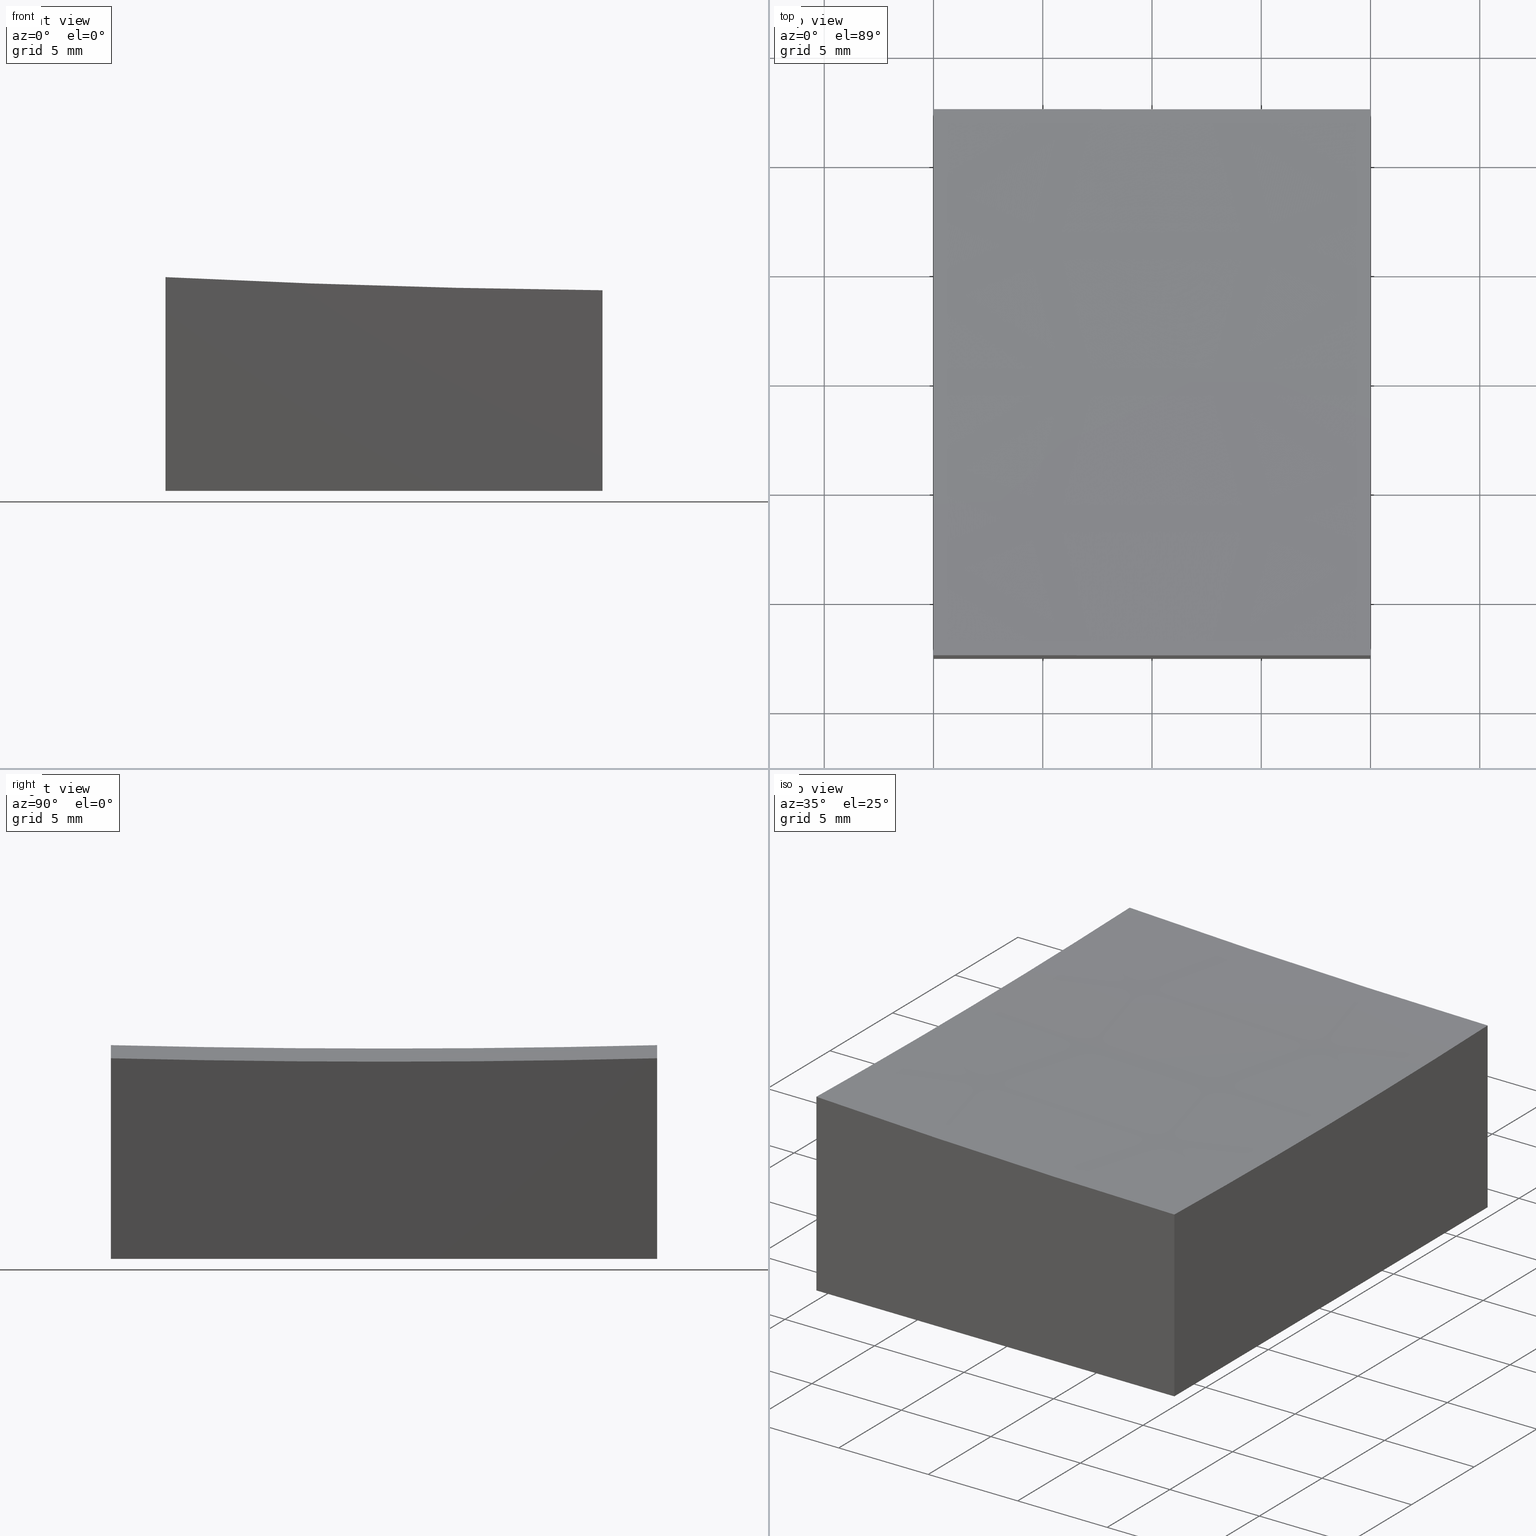
[diagram: canonical four-view strip — front | top / right | iso, engineering-drawing reading convention]
A machine part, canonical four-view strip (front | top / right | iso — engineering-drawing reading convention). The complete STEP part file that produces these views, byte-faithful:
ISO-10303-21;
HEADER;
FILE_DESCRIPTION (( 'STEP AP203' ),
    '1' );
FILE_NAME ('270640.step',
    '2024-12-24T02:21:42',
    ( '' ),
    ( '' ),
    'SwSTEP 2.0',
    'SolidWorks 2020',
    '' );
FILE_SCHEMA (( 'CONFIG_CONTROL_DESIGN' ));
ENDSEC;

DATA;
#1 = ORIENTED_EDGE ( 'NONE', *, *, #111, .F. ) ;
#2 = EDGE_CURVE ( 'NONE', #226, #220, #53, .T. ) ;
#3 = CIRCLE ( 'NONE', #265, 499.3746088859544443 ) ;
#4 = DIRECTION ( 'NONE',  ( 1.000000000000000000, 0.000000000000000000, 0.000000000000000000 ) ) ;
#5 = ORIENTED_EDGE ( 'NONE', *, *, #132, .T. ) ;
#6 = CC_DESIGN_SECURITY_CLASSIFICATION ( #135, ( #69 ) ) ;
#7 = COORDINATED_UNIVERSAL_TIME_OFFSET ( 8, 0, .AHEAD. ) ;
#8 = CARTESIAN_POINT ( 'NONE',  ( -9.999999999999998224, 12.49999999999999645, -10.00000000000000000 ) ) ;
#9 = CARTESIAN_POINT ( 'NONE',  ( 10.00000000000000178, 0.000000000000000000, 499.0000000000000000 ) ) ;
#10 = CARTESIAN_POINT ( 'NONE',  ( 10.00000000000000178, 12.50000000000000000, 10.00000000000000000 ) ) ;
#11 = FACE_OUTER_BOUND ( 'NONE', #260, .T. ) ;
#12 = DIRECTION ( 'NONE',  ( -0.000000000000000000, -0.000000000000000000, -1.000000000000000000 ) ) ;
#13 = APPROVAL ( #273, 'δָ��' ) ;
#14 = EDGE_CURVE ( 'NONE', #19, #218, #181, .T. ) ;
#15 = CALENDAR_DATE ( 2024, 24, 12 ) ;
#16 = DIRECTION ( 'NONE',  ( -1.000000000000000000, 0.000000000000000000, 1.110223024625156787E-16 ) ) ;
#17 = ORIENTED_EDGE ( 'NONE', *, *, #263, .T. ) ;
#18 = FACE_OUTER_BOUND ( 'NONE', #89, .T. ) ;
#19 = VERTEX_POINT ( 'NONE', #25 ) ;
#20 = ORIENTED_EDGE ( 'NONE', *, *, #72, .T. ) ;
#21 = CIRCLE ( 'NONE', #60, 499.3746088859544443 ) ;
#22 = EDGE_CURVE ( 'NONE', #79, #133, #47, .T. ) ;
#23 = APPROVAL_PERSON_ORGANIZATION ( #85, #136, #216 ) ;
#24 = DIRECTION ( 'NONE',  ( 0.000000000000000000, 1.000000000000000000, -0.000000000000000000 ) ) ;
#25 = CARTESIAN_POINT ( 'NONE',  ( -9.999999999999998224, -12.50000000000000355, -10.00000000000000000 ) ) ;
#26 = COORDINATED_UNIVERSAL_TIME_OFFSET ( 8, 0, .AHEAD. ) ;
#27 = DIRECTION ( 'NONE',  ( 1.734723475976807094E-16, -1.000000000000000000, 0.000000000000000000 ) ) ;
#28 = LINE ( 'NONE', #184, #107 ) ;
#29 = DIRECTION ( 'NONE',  ( -1.000000000000000000, -1.734723475976807094E-16, 0.000000000000000000 ) ) ;
#30 = DIRECTION ( 'NONE',  ( -1.000000000000000000, -1.735265831305355409E-16, 0.000000000000000000 ) ) ;
#31 = ADVANCED_FACE ( 'NONE', ( #224 ), #113, .F. ) ;
#32 = DATE_AND_TIME ( #94, #277 ) ;
#33 = CARTESIAN_POINT ( 'NONE',  ( 10.00000000000000178, -12.50000000000000000, 10.00000000000000000 ) ) ;
#34 = CARTESIAN_POINT ( 'NONE',  ( -10.00000000000000000, 0.000000000000000000, 499.0000000000000000 ) ) ;
#35 = ORIENTED_EDGE ( 'NONE', *, *, #185, .F. ) ;
#36 =( NAMED_UNIT ( * ) PLANE_ANGLE_UNIT ( ) SI_UNIT ( $, .RADIAN. ) );
#37 = FACE_OUTER_BOUND ( 'NONE', #121, .T. ) ;
#38 = APPLICATION_CONTEXT ( 'configuration controlled 3d designs of mechanical parts and assemblies' ) ;
#39 = ORIENTED_EDGE ( 'NONE', *, *, #197, .T. ) ;
#40 = APPROVAL_PERSON_ORGANIZATION ( #201, #131, #122 ) ;
#41 = PERSON_AND_ORGANIZATION ( #157, #244 ) ;
#42 = VECTOR ( 'NONE', #12, 1000.000000000000000 ) ;
#43 = ADVANCED_BREP_SHAPE_REPRESENTATION ( '270640', ( #93, #91 ), #88 ) ;
#44 = ORIENTED_EDGE ( 'NONE', *, *, #185, .T. ) ;
#45 = VECTOR ( 'NONE', #102, 1000.000000000000000 ) ;
#46 = CC_DESIGN_PERSON_AND_ORGANIZATION_ASSIGNMENT ( #51, #204, ( #69 ) ) ;
#47 = CIRCLE ( 'NONE', #209, 499.9999999999999432 ) ;
#48 = AXIS2_PLACEMENT_3D ( 'NONE', #74, #246, #142 ) ;
#49 = AXIS2_PLACEMENT_3D ( 'NONE', #268, #147, #30 ) ;
#50 = PRODUCT_DEFINITION ( 'δ֪', '', #69, #92 ) ;
#51 = PERSON_AND_ORGANIZATION ( #157, #244 ) ;
#52 = CARTESIAN_POINT ( 'NONE',  ( -9.999999999999998224, -12.50000000000000355, -0.2181386928964412775 ) ) ;
#53 = LINE ( 'NONE', #141, #42 ) ;
#54 = DIRECTION ( 'NONE',  ( -1.000000000000000000, -1.734723475976807094E-16, 0.000000000000000000 ) ) ;
#55 = ORIENTED_EDGE ( 'NONE', *, *, #263, .F. ) ;
#56 = CC_DESIGN_DATE_AND_TIME_ASSIGNMENT ( #126, #104, ( #50 ) ) ;
#57 = EDGE_CURVE ( 'NONE', #239, #133, #175, .T. ) ;
#58 = DIRECTION ( 'NONE',  ( 1.000000000000000000, 0.000000000000000000, 0.000000000000000000 ) ) ;
#59 = CARTESIAN_POINT ( 'NONE',  ( 10.00000000000000178, -12.50000000000000000, -10.00000000000000000 ) ) ;
#60 = AXIS2_PLACEMENT_3D ( 'NONE', #34, #4, #252 ) ;
#61 = PERSON_AND_ORGANIZATION ( #157, #244 ) ;
#62 = CARTESIAN_POINT ( 'NONE',  ( 10.00000000000000178, -12.50000000000000000, 10.00000000000000000 ) ) ;
#63 = ORIENTED_EDGE ( 'NONE', *, *, #132, .F. ) ;
#64 = PERSON_AND_ORGANIZATION ( #157, #244 ) ;
#65 = CARTESIAN_POINT ( 'NONE',  ( 15.00000000000006395, 0.000000000000000000, 499.0000000000000000 ) ) ;
#66 = ORIENTED_EDGE ( 'NONE', *, *, #207, .T. ) ;
#67 = DIRECTION ( 'NONE',  ( 1.734723475976807094E-16, -1.000000000000000000, 0.000000000000000000 ) ) ;
#68 = PRODUCT_DEFINITION_SHAPE ( 'NONE', 'NONE',  #50 ) ;
#69 = PRODUCT_DEFINITION_FORMATION_WITH_SPECIFIED_SOURCE ( '�κ�', '', #264, .NOT_KNOWN. ) ;
#70 = CARTESIAN_POINT ( 'NONE',  ( 10.00000000000000178, 12.50000000000000000, -0.8187171365233725240 ) ) ;
#71 = ORIENTED_EDGE ( 'NONE', *, *, #258, .T. ) ;
#72 = EDGE_CURVE ( 'NONE', #86, #19, #28, .T. ) ;
#73 = VECTOR ( 'NONE', #155, 1000.000000000000000 ) ;
#74 = CARTESIAN_POINT ( 'NONE',  ( 10.00000000000000178, 0.000000000000000000, 499.0000000000000000 ) ) ;
#75 = CARTESIAN_POINT ( 'NONE',  ( 0.000000000000000000, 0.000000000000000000, -10.00000000000000000 ) ) ;
#76 = EDGE_CURVE ( 'NONE', #203, #86, #217, .T. ) ;
#77 = PERSON_AND_ORGANIZATION ( #157, #244 ) ;
#78 = DIRECTION ( 'NONE',  ( 0.000000000000000000, 0.000000000000000000, -1.000000000000000000 ) ) ;
#79 = VERTEX_POINT ( 'NONE', #254 ) ;
#80 = ADVANCED_FACE ( 'NONE', ( #274 ), #169, .F. ) ;
#81 = PERSON_AND_ORGANIZATION ( #157, #244 ) ;
#82 = DIRECTION ( 'NONE',  ( 0.000000000000000000, 0.000000000000000000, 1.000000000000000000 ) ) ;
#83 = DIRECTION ( 'NONE',  ( -1.000000000000000000, 0.000000000000000000, 0.000000000000000000 ) ) ;
#84 = AXIS2_PLACEMENT_3D ( 'NONE', #75, #162, #100 ) ;
#85 = PERSON_AND_ORGANIZATION ( #157, #244 ) ;
#86 = VERTEX_POINT ( 'NONE', #52 ) ;
#87 =( NAMED_UNIT ( * ) SI_UNIT ( $, .STERADIAN. ) SOLID_ANGLE_UNIT ( ) );
#88 =( GEOMETRIC_REPRESENTATION_CONTEXT ( 3 ) GLOBAL_UNCERTAINTY_ASSIGNED_CONTEXT ( ( #240 ) ) GLOBAL_UNIT_ASSIGNED_CONTEXT ( ( #276, #36, #87 ) ) REPRESENTATION_CONTEXT ( 'NONE', 'WORKASPACE' ) );
#89 = EDGE_LOOP ( 'NONE', ( #232, #5, #39, #106 ) ) ;
#90 = CC_DESIGN_PERSON_AND_ORGANIZATION_ASSIGNMENT ( #81, #109, ( #264 ) ) ;
#91 = AXIS2_PLACEMENT_3D ( 'NONE', #145, #130, #236 ) ;
#92 = DESIGN_CONTEXT ( 'detailed design', #119, 'design' ) ;
#93 = MANIFOLD_SOLID_BREP ( '�г�-��ת8', #129 ) ;
#94 = CALENDAR_DATE ( 2024, 24, 12 ) ;
#95 = LOCAL_TIME ( 10, 21, 42.00000000000000000, #186 ) ;
#96 = CARTESIAN_POINT ( 'NONE',  ( 10.00000000000000178, 0.000000000000000000, -0.9749993749686991507 ) ) ;
#97 = EDGE_LOOP ( 'NONE', ( #150, #35, #116, #235 ) ) ;
#98 = SHAPE_DEFINITION_REPRESENTATION ( #68, #43 ) ;
#99 = CARTESIAN_POINT ( 'NONE',  ( -9.999999999999998224, 12.49999999999999645, -0.2181386928964412775 ) ) ;
#100 = DIRECTION ( 'NONE',  ( 1.000000000000000000, 0.000000000000000000, -0.000000000000000000 ) ) ;
#101 = PERSON_AND_ORGANIZATION_ROLE ( 'classification_officer' ) ;
#102 = DIRECTION ( 'NONE',  ( -0.000000000000000000, -1.000000000000000000, -0.000000000000000000 ) ) ;
#103 = ORIENTED_EDGE ( 'NONE', *, *, #14, .F. ) ;
#104 = DATE_TIME_ROLE ( 'creation_date' ) ;
#105 = DIRECTION ( 'NONE',  ( -1.000000000000000000, 0.000000000000000000, 1.110223024625156787E-16 ) ) ;
#106 = ORIENTED_EDGE ( 'NONE', *, *, #111, .T. ) ;
#107 = VECTOR ( 'NONE', #229, 1000.000000000000000 ) ;
#108 = CC_DESIGN_PERSON_AND_ORGANIZATION_ASSIGNMENT ( #61, #101, ( #135 ) ) ;
#109 = PERSON_AND_ORGANIZATION_ROLE ( 'design_owner' ) ;
#110 = EDGE_CURVE ( 'NONE', #79, #226, #21, .T. ) ;
#111 = EDGE_CURVE ( 'NONE', #206, #220, #187, .T. ) ;
#112 = LINE ( 'NONE', #191, #138 ) ;
#113 = PLANE ( 'NONE',  #84 ) ;
#114 = VECTOR ( 'NONE', #205, 1000.000000000000000 ) ;
#115 = CARTESIAN_POINT ( 'NONE',  ( 10.00000000000000178, -12.50000000000000000, -10.00000000000000000 ) ) ;
#116 = ORIENTED_EDGE ( 'NONE', *, *, #76, .F. ) ;
#117 = DATE_AND_TIME ( #245, #127 ) ;
#118 = PLANE ( 'NONE',  #257 ) ;
#119 = APPLICATION_CONTEXT ( 'configuration controlled 3d designs of mechanical parts and assemblies' ) ;
#120 = CARTESIAN_POINT ( 'NONE',  ( 10.00000000000000178, 12.50000000000000000, -10.00000000000000000 ) ) ;
#121 = EDGE_LOOP ( 'NONE', ( #275, #44, #211, #188, #17 ) ) ;
#122 = APPROVAL_ROLE ( '' ) ;
#123 = CALENDAR_DATE ( 2024, 24, 12 ) ;
#124 = DIRECTION ( 'NONE',  ( -1.734723475976807094E-16, 1.000000000000000000, 0.000000000000000000 ) ) ;
#125 = EDGE_LOOP ( 'NONE', ( #173, #134, #66, #71, #170 ) ) ;
#126 = DATE_AND_TIME ( #15, #178 ) ;
#127 = LOCAL_TIME ( 10, 21, 42.00000000000000000, #7 ) ;
#128 = LINE ( 'NONE', #33, #73 ) ;
#129 = CLOSED_SHELL ( 'NONE', ( #159, #166, #137, #237, #243, #31, #80 ) ) ;
#130 = DIRECTION ( 'NONE',  ( 0.000000000000000000, 0.000000000000000000, 1.000000000000000000 ) ) ;
#131 = APPROVAL ( #208, 'δָ��' ) ;
#132 = EDGE_CURVE ( 'NONE', #226, #239, #198, .T. ) ;
#133 = VERTEX_POINT ( 'NONE', #96 ) ;
#134 = ORIENTED_EDGE ( 'NONE', *, *, #57, .T. ) ;
#135 = SECURITY_CLASSIFICATION ( '', '', #212 ) ;
#136 = APPROVAL ( #151, 'δָ��' ) ;
#137 = ADVANCED_FACE ( 'NONE', ( #11 ), #266, .F. ) ;
#138 = VECTOR ( 'NONE', #202, 1000.000000000000000 ) ;
#139 = CALENDAR_DATE ( 2024, 24, 12 ) ;
#140 = FACE_OUTER_BOUND ( 'NONE', #168, .T. ) ;
#141 = CARTESIAN_POINT ( 'NONE',  ( -9.999999999999998224, 12.49999999999999645, 10.00000000000000000 ) ) ;
#142 = DIRECTION ( 'NONE',  ( 0.000000000000000000, 0.000000000000000000, 1.000000000000000000 ) ) ;
#143 = ORIENTED_EDGE ( 'NONE', *, *, #57, .F. ) ;
#144 = APPROVAL_DATE_TIME ( #182, #136 ) ;
#145 = CARTESIAN_POINT ( 'NONE',  ( 0.000000000000000000, 0.000000000000000000, 0.000000000000000000 ) ) ;
#146 = DIRECTION ( 'NONE',  ( 1.000000000000000000, 0.000000000000000000, 0.000000000000000000 ) ) ;
#147 = DIRECTION ( 'NONE',  ( -1.734723475976807094E-16, 1.000000000000000000, 0.000000000000000000 ) ) ;
#148 = CARTESIAN_POINT ( 'NONE',  ( -9.999999999999998224, -12.50000000000000355, -10.00000000000000000 ) ) ;
#149 = SPHERICAL_SURFACE ( 'NONE', #241, 499.9999999999999432 ) ;
#150 = ORIENTED_EDGE ( 'NONE', *, *, #22, .F. ) ;
#151 = APPROVAL_STATUS ( 'not_yet_approved' ) ;
#152 = DIRECTION ( 'NONE',  ( 1.000000000000000000, 1.735265831305355409E-16, 0.000000000000000000 ) ) ;
#153 = ORIENTED_EDGE ( 'NONE', *, *, #22, .T. ) ;
#154 = VECTOR ( 'NONE', #29, 1000.000000000000000 ) ;
#155 = DIRECTION ( 'NONE',  ( -0.000000000000000000, -0.000000000000000000, -1.000000000000000000 ) ) ;
#156 = CC_DESIGN_PERSON_AND_ORGANIZATION_ASSIGNMENT ( #64, #165, ( #50 ) ) ;
#157 = PERSON ( 'δָ��', 'δָ��', 'δָ��', ('δָ��'), ('δָ��'), ('δָ��') ) ;
#158 = AXIS2_PLACEMENT_3D ( 'NONE', #65, #24, #105 ) ;
#159 = ADVANCED_FACE ( 'NONE', ( #140 ), #149, .F. ) ;
#160 = AXIS2_PLACEMENT_3D ( 'NONE', #249, #228, #82 ) ;
#161 = CARTESIAN_POINT ( 'NONE',  ( 15.00000000000006217, 12.50000000000000178, 499.0000000000000000 ) ) ;
#162 = DIRECTION ( 'NONE',  ( 0.000000000000000000, -0.000000000000000000, 1.000000000000000000 ) ) ;
#163 = CARTESIAN_POINT ( 'NONE',  ( 10.00000000000000178, -12.50000000000000000, -10.00000000000000000 ) ) ;
#164 = DIRECTION ( 'NONE',  ( 1.000000000000000000, 1.734723475976807094E-16, -0.000000000000000000 ) ) ;
#165 = PERSON_AND_ORGANIZATION_ROLE ( 'creator' ) ;
#166 = ADVANCED_FACE ( 'NONE', ( #37 ), #270, .F. ) ;
#167 = CARTESIAN_POINT ( 'NONE',  ( 15.00000000000006395, 0.000000000000000000, 499.0000000000000000 ) ) ;
#168 = EDGE_LOOP ( 'NONE', ( #195, #153, #143, #63 ) ) ;
#169 = SPHERICAL_SURFACE ( 'NONE', #158, 499.9999999999999432 ) ;
#170 = ORIENTED_EDGE ( 'NONE', *, *, #219, .T. ) ;
#171 = APPROVAL_DATE_TIME ( #213, #13 ) ;
#172 = APPLICATION_PROTOCOL_DEFINITION ( 'international standard', 'config_control_design', 1994, #38 ) ;
#173 = ORIENTED_EDGE ( 'NONE', *, *, #197, .F. ) ;
#174 = EDGE_LOOP ( 'NONE', ( #55, #1, #259, #103 ) ) ;
#175 = CIRCLE ( 'NONE', #222, 499.9749993749687178 ) ;
#176 = CC_DESIGN_APPROVAL ( #131, ( #135 ) ) ;
#177 = CC_DESIGN_PERSON_AND_ORGANIZATION_ASSIGNMENT ( #77, #230, ( #69 ) ) ;
#178 = LOCAL_TIME ( 10, 21, 42.00000000000000000, #251 ) ;
#179 = CC_DESIGN_APPROVAL ( #13, ( #50 ) ) ;
#180 = CARTESIAN_POINT ( 'NONE',  ( -9.999999999999998224, -12.50000000000000355, 10.00000000000000000 ) ) ;
#181 = LINE ( 'NONE', #59, #199 ) ;
#182 = DATE_AND_TIME ( #139, #221 ) ;
#183 = PLANE ( 'NONE',  #160 ) ;
#184 = CARTESIAN_POINT ( 'NONE',  ( -9.999999999999998224, -12.50000000000000355, 10.00000000000000000 ) ) ;
#185 = EDGE_CURVE ( 'NONE', #86, #79, #3, .T. ) ;
#186 = COORDINATED_UNIVERSAL_TIME_OFFSET ( 8, 0, .AHEAD. ) ;
#187 = LINE ( 'NONE', #223, #154 ) ;
#188 = ORIENTED_EDGE ( 'NONE', *, *, #2, .T. ) ;
#189 = LINE ( 'NONE', #148, #45 ) ;
#190 = CIRCLE ( 'NONE', #48, 499.9749993749687178 ) ;
#191 = CARTESIAN_POINT ( 'NONE',  ( 10.00000000000000178, 12.50000000000000000, 10.00000000000000000 ) ) ;
#192 = DIRECTION ( 'NONE',  ( 0.000000000000000000, 0.000000000000000000, -1.000000000000000000 ) ) ;
#193 = APPLICATION_PROTOCOL_DEFINITION ( 'international standard', 'config_control_design', 1994, #119 ) ;
#194 = AXIS2_PLACEMENT_3D ( 'NONE', #180, #58, #214 ) ;
#195 = ORIENTED_EDGE ( 'NONE', *, *, #110, .F. ) ;
#196 = PRODUCT_RELATED_PRODUCT_CATEGORY ( 'detail', '', ( #264 ) ) ;
#197 = EDGE_CURVE ( 'NONE', #239, #206, #112, .T. ) ;
#198 = CIRCLE ( 'NONE', #261, 499.8437255783051114 ) ;
#199 = VECTOR ( 'NONE', #164, 1000.000000000000000 ) ;
#200 = APPROVAL_PERSON_ORGANIZATION ( #41, #13, #227 ) ;
#201 = PERSON_AND_ORGANIZATION ( #157, #244 ) ;
#202 = DIRECTION ( 'NONE',  ( -0.000000000000000000, -0.000000000000000000, -1.000000000000000000 ) ) ;
#203 = VERTEX_POINT ( 'NONE', #231 ) ;
#204 = PERSON_AND_ORGANIZATION_ROLE ( 'design_supplier' ) ;
#205 = DIRECTION ( 'NONE',  ( 0.000000000000000000, 1.000000000000000000, 0.000000000000000000 ) ) ;
#206 = VERTEX_POINT ( 'NONE', #120 ) ;
#207 = EDGE_CURVE ( 'NONE', #133, #203, #190, .T. ) ;
#208 = APPROVAL_STATUS ( 'not_yet_approved' ) ;
#209 = AXIS2_PLACEMENT_3D ( 'NONE', #215, #250, #192 ) ;
#210 = FACE_OUTER_BOUND ( 'NONE', #125, .T. ) ;
#211 = ORIENTED_EDGE ( 'NONE', *, *, #110, .T. ) ;
#212 = SECURITY_CLASSIFICATION_LEVEL ( 'unclassified' ) ;
#213 = DATE_AND_TIME ( #123, #95 ) ;
#214 = DIRECTION ( 'NONE',  ( 0.000000000000000000, 0.000000000000000000, -1.000000000000000000 ) ) ;
#215 = CARTESIAN_POINT ( 'NONE',  ( 15.00000000000006395, 0.000000000000000000, 499.0000000000000000 ) ) ;
#216 = APPROVAL_ROLE ( '' ) ;
#217 = CIRCLE ( 'NONE', #49, 499.8437255783051114 ) ;
#218 = VERTEX_POINT ( 'NONE', #163 ) ;
#219 = EDGE_CURVE ( 'NONE', #218, #206, #225, .T. ) ;
#220 = VERTEX_POINT ( 'NONE', #8 ) ;
#221 = LOCAL_TIME ( 10, 21, 42.00000000000000000, #256 ) ;
#222 = AXIS2_PLACEMENT_3D ( 'NONE', #9, #83, #247 ) ;
#223 = CARTESIAN_POINT ( 'NONE',  ( 10.00000000000000178, 12.50000000000000000, -10.00000000000000000 ) ) ;
#224 = FACE_OUTER_BOUND ( 'NONE', #174, .T. ) ;
#225 = LINE ( 'NONE', #115, #114 ) ;
#226 = VERTEX_POINT ( 'NONE', #99 ) ;
#227 = APPROVAL_ROLE ( '' ) ;
#228 = DIRECTION ( 'NONE',  ( -1.000000000000000000, 0.000000000000000000, 0.000000000000000000 ) ) ;
#229 = DIRECTION ( 'NONE',  ( -0.000000000000000000, -0.000000000000000000, -1.000000000000000000 ) ) ;
#230 = PERSON_AND_ORGANIZATION_ROLE ( 'creator' ) ;
#231 = CARTESIAN_POINT ( 'NONE',  ( 10.00000000000000178, -12.50000000000000000, -0.8187171365233725240 ) ) ;
#232 = ORIENTED_EDGE ( 'NONE', *, *, #2, .F. ) ;
#233 = MECHANICAL_CONTEXT ( 'NONE', #38, 'mechanical' ) ;
#234 = DIRECTION ( 'NONE',  ( 0.000000000000000000, 1.000000000000000000, -0.000000000000000000 ) ) ;
#235 = ORIENTED_EDGE ( 'NONE', *, *, #207, .F. ) ;
#236 = DIRECTION ( 'NONE',  ( 1.000000000000000000, 0.000000000000000000, 0.000000000000000000 ) ) ;
#237 = ADVANCED_FACE ( 'NONE', ( #210 ), #183, .F. ) ;
#238 = CC_DESIGN_APPROVAL ( #136, ( #69 ) ) ;
#239 = VERTEX_POINT ( 'NONE', #70 ) ;
#240 = UNCERTAINTY_MEASURE_WITH_UNIT (LENGTH_MEASURE( 1.000000000000000082E-05 ), #276, 'distance_accuracy_value', 'NONE');
#241 = AXIS2_PLACEMENT_3D ( 'NONE', #167, #234, #16 ) ;
#242 = CC_DESIGN_DATE_AND_TIME_ASSIGNMENT ( #117, #248, ( #135 ) ) ;
#243 = ADVANCED_FACE ( 'NONE', ( #18 ), #118, .F. ) ;
#244 = ORGANIZATION ( 'δָ��', 'δָ��', '' ) ;
#245 = CALENDAR_DATE ( 2024, 24, 12 ) ;
#246 = DIRECTION ( 'NONE',  ( -1.000000000000000000, 0.000000000000000000, 0.000000000000000000 ) ) ;
#247 = DIRECTION ( 'NONE',  ( 0.000000000000000000, 0.000000000000000000, 1.000000000000000000 ) ) ;
#248 = DATE_TIME_ROLE ( 'classification_date' ) ;
#249 = CARTESIAN_POINT ( 'NONE',  ( 10.00000000000000178, -12.50000000000000000, 10.00000000000000000 ) ) ;
#250 = DIRECTION ( 'NONE',  ( 0.000000000000000000, -1.000000000000000000, 0.000000000000000000 ) ) ;
#251 = COORDINATED_UNIVERSAL_TIME_OFFSET ( 8, 0, .AHEAD. ) ;
#252 = DIRECTION ( 'NONE',  ( 0.000000000000000000, 0.000000000000000000, -1.000000000000000000 ) ) ;
#253 = ORIENTED_EDGE ( 'NONE', *, *, #258, .F. ) ;
#254 = CARTESIAN_POINT ( 'NONE',  ( -10.00000000000000000, 0.000000000000000000, -0.3746088859544194349 ) ) ;
#255 = ORIENTED_EDGE ( 'NONE', *, *, #76, .T. ) ;
#256 = COORDINATED_UNIVERSAL_TIME_OFFSET ( 8, 0, .AHEAD. ) ;
#257 = AXIS2_PLACEMENT_3D ( 'NONE', #10, #67, #269 ) ;
#258 = EDGE_CURVE ( 'NONE', #203, #218, #128, .T. ) ;
#259 = ORIENTED_EDGE ( 'NONE', *, *, #219, .F. ) ;
#260 = EDGE_LOOP ( 'NONE', ( #253, #255, #20, #271 ) ) ;
#261 = AXIS2_PLACEMENT_3D ( 'NONE', #161, #27, #152 ) ;
#262 = AXIS2_PLACEMENT_3D ( 'NONE', #62, #124, #54 ) ;
#263 = EDGE_CURVE ( 'NONE', #220, #19, #189, .T. ) ;
#264 = PRODUCT ( '270640', '270640', '', ( #233 ) ) ;
#265 = AXIS2_PLACEMENT_3D ( 'NONE', #267, #146, #78 ) ;
#266 = PLANE ( 'NONE',  #262 ) ;
#267 = CARTESIAN_POINT ( 'NONE',  ( -10.00000000000000000, 0.000000000000000000, 499.0000000000000000 ) ) ;
#268 = CARTESIAN_POINT ( 'NONE',  ( 15.00000000000006573, -12.49999999999999822, 499.0000000000000000 ) ) ;
#269 = DIRECTION ( 'NONE',  ( 1.000000000000000000, 1.734723475976807094E-16, 0.000000000000000000 ) ) ;
#270 = PLANE ( 'NONE',  #194 ) ;
#271 = ORIENTED_EDGE ( 'NONE', *, *, #14, .T. ) ;
#272 = APPROVAL_DATE_TIME ( #32, #131 ) ;
#273 = APPROVAL_STATUS ( 'not_yet_approved' ) ;
#274 = FACE_OUTER_BOUND ( 'NONE', #97, .T. ) ;
#275 = ORIENTED_EDGE ( 'NONE', *, *, #72, .F. ) ;
#276 =( LENGTH_UNIT ( ) NAMED_UNIT ( * ) SI_UNIT ( .MILLI., .METRE. ) );
#277 = LOCAL_TIME ( 10, 21, 42.00000000000000000, #26 ) ;
ENDSEC;
END-ISO-10303-21;
